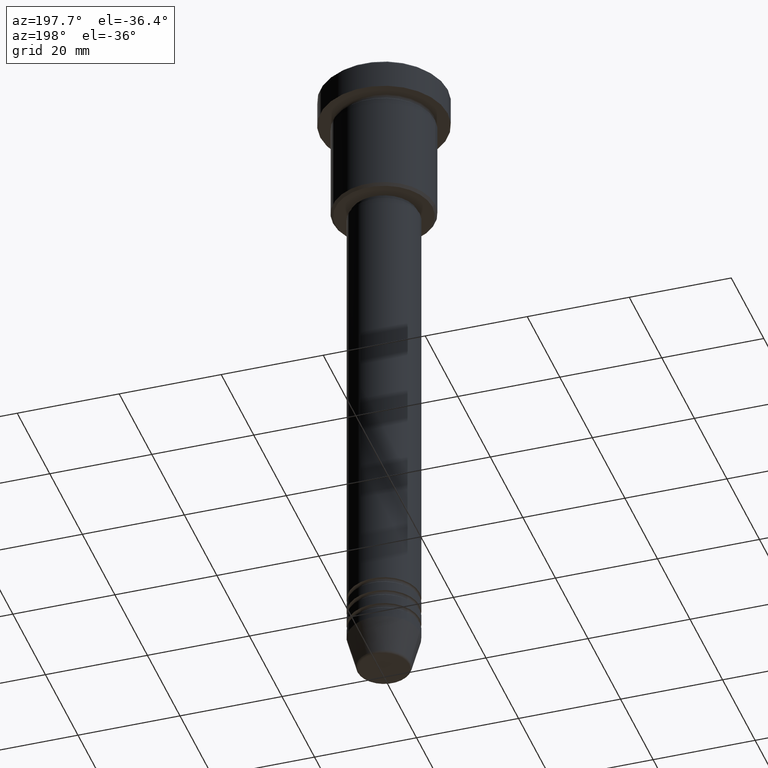
[diagram: clean part render]
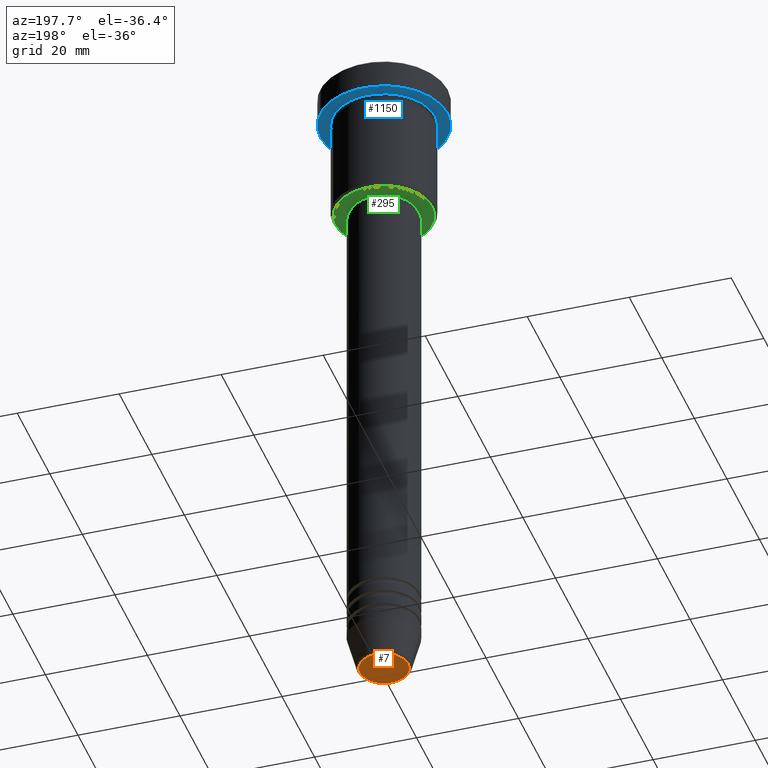
[diagram: same view with three faces highlighted in distinct colors, each labeled with its STEP entity id]
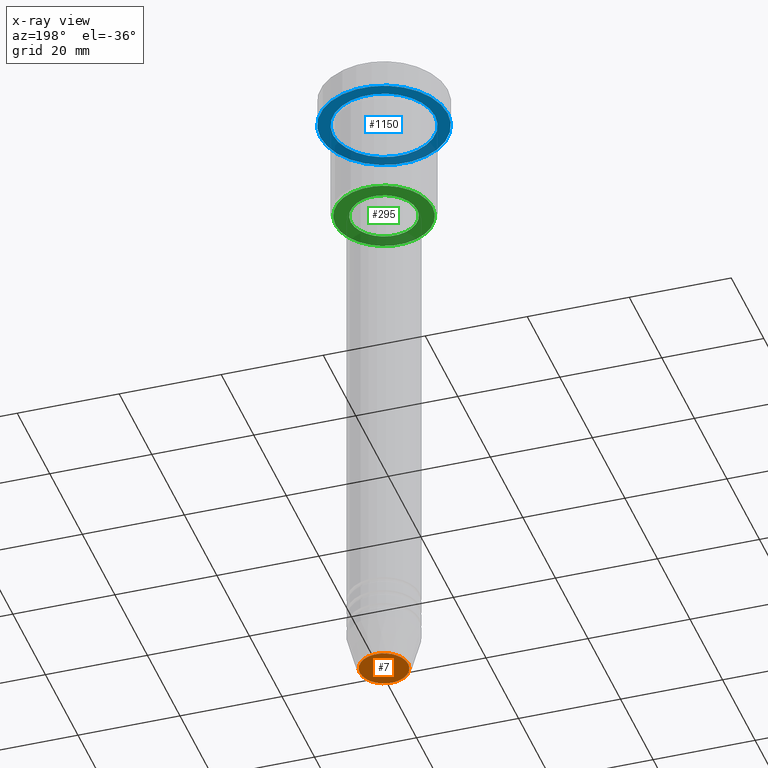
[diagram: x-ray of the same camera — body ghosted, the three highlighted faces saturated]
A machine part, auxiliary view with three faces highlighted in distinct colors.
The next image is the same camera in x-ray (body ghosted, the three faces saturated) — at least one of them is partly hidden behind the body in this view.
Their STEP definitions:

[orange] entity #7 — the highlighted planar face has unit normal (0, -0, 1).
#7 = ADVANCED_FACE ( 'NONE', ( #710 ), #1081, .F. ) ;
#21 = ORIENTED_EDGE ( 'NONE', *, *, #995, .T. ) ;
#35 = DIRECTION ( 'NONE',  ( 0.000000000000000000, 0.000000000000000000, -1.000000000000000000 ) ) ;
#97 = CARTESIAN_POINT ( 'NONE',  ( 0.000000000000000000, 0.000000000000000000, -132.0000000000000000 ) ) ;
#155 = EDGE_CURVE ( 'NONE', #240, #618, #1177, .T. ) ;
#189 = DIRECTION ( 'NONE',  ( 0.000000000000000000, -0.000000000000000000, 1.000000000000000000 ) ) ;
#240 = VERTEX_POINT ( 'NONE', #242 ) ;
#242 = CARTESIAN_POINT ( 'NONE',  ( 4.740692158992654726, 0.000000000000000000, -132.0000000000000000 ) ) ;
#282 = DIRECTION ( 'NONE',  ( 0.000000000000000000, 0.000000000000000000, -1.000000000000000000 ) ) ;
#464 = EDGE_LOOP ( 'NONE', ( #738, #21 ) ) ;
#470 = CIRCLE ( 'NONE', #557, 4.740692158992654726 ) ;
#546 = CARTESIAN_POINT ( 'NONE',  ( 0.000000000000000000, 0.000000000000000000, -132.0000000000000000 ) ) ;
#552 = AXIS2_PLACEMENT_3D ( 'NONE', #97, #282, #646 ) ;
#557 = AXIS2_PLACEMENT_3D ( 'NONE', #946, #35, #659 ) ;
#618 = VERTEX_POINT ( 'NONE', #1022 ) ;
#644 = DIRECTION ( 'NONE',  ( 1.000000000000000000, 0.000000000000000000, 0.000000000000000000 ) ) ;
#646 = DIRECTION ( 'NONE',  ( 1.000000000000000000, 0.000000000000000000, 0.000000000000000000 ) ) ;
#659 = DIRECTION ( 'NONE',  ( 1.000000000000000000, 0.000000000000000000, 0.000000000000000000 ) ) ;
#710 = FACE_OUTER_BOUND ( 'NONE', #464, .T. ) ;
#738 = ORIENTED_EDGE ( 'NONE', *, *, #155, .T. ) ;
#824 = AXIS2_PLACEMENT_3D ( 'NONE', #546, #189, #644 ) ;
#946 = CARTESIAN_POINT ( 'NONE',  ( 0.000000000000000000, 0.000000000000000000, -132.0000000000000000 ) ) ;
#995 = EDGE_CURVE ( 'NONE', #618, #240, #470, .T. ) ;
#1022 = CARTESIAN_POINT ( 'NONE',  ( -4.740692158992654726, 6.101402971097978774E-16, -132.0000000000000000 ) ) ;
#1081 = PLANE ( 'NONE',  #824 ) ;
#1177 = CIRCLE ( 'NONE', #552, 4.740692158992654726 ) ;

[blue] entity #1150 — the highlighted planar face has unit normal (0, 0, -1).
#4 = DIRECTION ( 'NONE',  ( -0.000000000000000000, -0.000000000000000000, 1.000000000000000000 ) ) ;
#71 = PLANE ( 'NONE',  #890 ) ;
#94 = CIRCLE ( 'NONE', #1123, 10.00000000000000000 ) ;
#107 = ORIENTED_EDGE ( 'NONE', *, *, #545, .F. ) ;
#120 = DIRECTION ( 'NONE',  ( -0.000000000000000000, -0.000000000000000000, 1.000000000000000000 ) ) ;
#174 = FACE_OUTER_BOUND ( 'NONE', #1173, .T. ) ;
#180 = CARTESIAN_POINT ( 'NONE',  ( -10.00000000000000000, 0.000000000000000000, -5.999999999999996447 ) ) ;
#227 = VERTEX_POINT ( 'NONE', #873 ) ;
#365 = DIRECTION ( 'NONE',  ( -1.000000000000000000, 0.000000000000000000, 0.000000000000000000 ) ) ;
#377 = CIRCLE ( 'NONE', #494, 12.50000000000000000 ) ;
#382 = DIRECTION ( 'NONE',  ( 1.000000000000000000, 0.000000000000000000, 0.000000000000000000 ) ) ;
#383 = VERTEX_POINT ( 'NONE', #180 ) ;
#387 = CARTESIAN_POINT ( 'NONE',  ( 0.000000000000000000, 0.000000000000000000, -5.999999999999996447 ) ) ;
#410 = CARTESIAN_POINT ( 'NONE',  ( 10.00000000000000000, 1.224646799147353256E-15, -5.999999999999996447 ) ) ;
#426 = FACE_BOUND ( 'NONE', #804, .T. ) ;
#477 = DIRECTION ( 'NONE',  ( -0.000000000000000000, -0.000000000000000000, 1.000000000000000000 ) ) ;
#487 = VERTEX_POINT ( 'NONE', #555 ) ;
#494 = AXIS2_PLACEMENT_3D ( 'NONE', #750, #4, #382 ) ;
#545 = EDGE_CURVE ( 'NONE', #227, #487, #683, .T. ) ;
#555 = CARTESIAN_POINT ( 'NONE',  ( 12.50000000000000000, 0.000000000000000000, -5.999999999999996447 ) ) ;
#611 = AXIS2_PLACEMENT_3D ( 'NONE', #1183, #800, #365 ) ;
#653 = ORIENTED_EDGE ( 'NONE', *, *, #1033, .F. ) ;
#654 = CARTESIAN_POINT ( 'NONE',  ( 0.000000000000000000, 0.000000000000000000, -5.999999999999996447 ) ) ;
#683 = CIRCLE ( 'NONE', #755, 12.50000000000000000 ) ;
#750 = CARTESIAN_POINT ( 'NONE',  ( 0.000000000000000000, 0.000000000000000000, -5.999999999999996447 ) ) ;
#755 = AXIS2_PLACEMENT_3D ( 'NONE', #654, #120, #934 ) ;
#800 = DIRECTION ( 'NONE',  ( -0.000000000000000000, -0.000000000000000000, 1.000000000000000000 ) ) ;
#804 = EDGE_LOOP ( 'NONE', ( #915, #1147 ) ) ;
#829 = CIRCLE ( 'NONE', #611, 10.00000000000000000 ) ;
#873 = CARTESIAN_POINT ( 'NONE',  ( -12.50000000000000000, 1.530808498934191521E-15, -5.999999999999996447 ) ) ;
#890 = AXIS2_PLACEMENT_3D ( 'NONE', #1078, #982, #1065 ) ;
#915 = ORIENTED_EDGE ( 'NONE', *, *, #940, .T. ) ;
#930 = DIRECTION ( 'NONE',  ( -1.000000000000000000, 0.000000000000000000, 0.000000000000000000 ) ) ;
#934 = DIRECTION ( 'NONE',  ( 1.000000000000000000, 0.000000000000000000, 0.000000000000000000 ) ) ;
#940 = EDGE_CURVE ( 'NONE', #383, #1174, #829, .T. ) ;
#982 = DIRECTION ( 'NONE',  ( 0.000000000000000000, 0.000000000000000000, -1.000000000000000000 ) ) ;
#1033 = EDGE_CURVE ( 'NONE', #487, #227, #377, .T. ) ;
#1065 = DIRECTION ( 'NONE',  ( -1.000000000000000000, 0.000000000000000000, -0.000000000000000000 ) ) ;
#1071 = EDGE_CURVE ( 'NONE', #1174, #383, #94, .T. ) ;
#1078 = CARTESIAN_POINT ( 'NONE',  ( 0.000000000000000000, 12.50000000000000000, -5.999999999999996447 ) ) ;
#1123 = AXIS2_PLACEMENT_3D ( 'NONE', #387, #477, #930 ) ;
#1147 = ORIENTED_EDGE ( 'NONE', *, *, #1071, .T. ) ;
#1150 = ADVANCED_FACE ( 'NONE', ( #426, #174 ), #71, .T. ) ;
#1173 = EDGE_LOOP ( 'NONE', ( #653, #107 ) ) ;
#1174 = VERTEX_POINT ( 'NONE', #410 ) ;
#1183 = CARTESIAN_POINT ( 'NONE',  ( 0.000000000000000000, 0.000000000000000000, -5.999999999999996447 ) ) ;

[green] entity #295 — the highlighted planar face has unit normal (0, 0, -1).
#13 = ORIENTED_EDGE ( 'NONE', *, *, #577, .T. ) ;
#18 = DIRECTION ( 'NONE',  ( 1.000000000000000000, 0.000000000000000000, 0.000000000000000000 ) ) ;
#26 = CARTESIAN_POINT ( 'NONE',  ( 6.500000000000000000, 0.000000000000000000, -27.00000000000000000 ) ) ;
#37 = DIRECTION ( 'NONE',  ( 0.000000000000000000, 0.000000000000000000, -1.000000000000000000 ) ) ;
#76 = CARTESIAN_POINT ( 'NONE',  ( 9.499999999999994671, 0.000000000000000000, -27.00000000000000000 ) ) ;
#139 = DIRECTION ( 'NONE',  ( -1.000000000000000000, 0.000000000000000000, 0.000000000000000000 ) ) ;
#160 = CARTESIAN_POINT ( 'NONE',  ( 0.000000000000000000, 0.000000000000000000, -27.00000000000000000 ) ) ;
#185 = CARTESIAN_POINT ( 'NONE',  ( 0.000000000000000000, 0.000000000000000000, -27.00000000000000000 ) ) ;
#237 = DIRECTION ( 'NONE',  ( -1.000000000000000000, 0.000000000000000000, -0.000000000000000000 ) ) ;
#257 = FACE_BOUND ( 'NONE', #560, .T. ) ;
#270 = ORIENTED_EDGE ( 'NONE', *, *, #680, .T. ) ;
#277 = DIRECTION ( 'NONE',  ( -0.000000000000000000, -0.000000000000000000, 1.000000000000000000 ) ) ;
#295 = ADVANCED_FACE ( 'NONE', ( #1149, #257 ), #425, .T. ) ;
#329 = DIRECTION ( 'NONE',  ( -1.000000000000000000, 0.000000000000000000, 0.000000000000000000 ) ) ;
#366 = CARTESIAN_POINT ( 'NONE',  ( -6.500000000000000000, 7.960204194457795477E-16, -27.00000000000000000 ) ) ;
#385 = DIRECTION ( 'NONE',  ( -0.000000000000000000, -0.000000000000000000, 1.000000000000000000 ) ) ;
#392 = EDGE_CURVE ( 'NONE', #1092, #480, #1027, .T. ) ;
#425 = PLANE ( 'NONE',  #429 ) ;
#429 = AXIS2_PLACEMENT_3D ( 'NONE', #773, #697, #237 ) ;
#448 = CIRCLE ( 'NONE', #1086, 9.499999999999994671 ) ;
#455 = VERTEX_POINT ( 'NONE', #729 ) ;
#480 = VERTEX_POINT ( 'NONE', #366 ) ;
#560 = EDGE_LOOP ( 'NONE', ( #854, #13 ) ) ;
#577 = EDGE_CURVE ( 'NONE', #480, #1092, #1045, .T. ) ;
#680 = EDGE_CURVE ( 'NONE', #455, #926, #701, .T. ) ;
#695 = EDGE_LOOP ( 'NONE', ( #832, #270 ) ) ;
#697 = DIRECTION ( 'NONE',  ( 0.000000000000000000, 0.000000000000000000, -1.000000000000000000 ) ) ;
#701 = CIRCLE ( 'NONE', #1006, 9.499999999999994671 ) ;
#729 = CARTESIAN_POINT ( 'NONE',  ( -9.499999999999994671, 1.194030629168669075E-15, -27.00000000000000000 ) ) ;
#737 = DIRECTION ( 'NONE',  ( 1.000000000000000000, 0.000000000000000000, 0.000000000000000000 ) ) ;
#773 = CARTESIAN_POINT ( 'NONE',  ( 0.000000000000000000, 10.00000000000000000, -27.00000000000000000 ) ) ;
#784 = EDGE_CURVE ( 'NONE', #926, #455, #448, .T. ) ;
#821 = CARTESIAN_POINT ( 'NONE',  ( 0.000000000000000000, 0.000000000000000000, -27.00000000000000000 ) ) ;
#832 = ORIENTED_EDGE ( 'NONE', *, *, #784, .T. ) ;
#854 = ORIENTED_EDGE ( 'NONE', *, *, #392, .T. ) ;
#866 = DIRECTION ( 'NONE',  ( 0.000000000000000000, 0.000000000000000000, -1.000000000000000000 ) ) ;
#869 = AXIS2_PLACEMENT_3D ( 'NONE', #821, #385, #18 ) ;
#926 = VERTEX_POINT ( 'NONE', #76 ) ;
#1006 = AXIS2_PLACEMENT_3D ( 'NONE', #160, #866, #329 ) ;
#1027 = CIRCLE ( 'NONE', #1103, 6.500000000000000000 ) ;
#1045 = CIRCLE ( 'NONE', #869, 6.500000000000000000 ) ;
#1086 = AXIS2_PLACEMENT_3D ( 'NONE', #1152, #37, #139 ) ;
#1092 = VERTEX_POINT ( 'NONE', #26 ) ;
#1103 = AXIS2_PLACEMENT_3D ( 'NONE', #185, #277, #737 ) ;
#1149 = FACE_OUTER_BOUND ( 'NONE', #695, .T. ) ;
#1152 = CARTESIAN_POINT ( 'NONE',  ( 0.000000000000000000, 0.000000000000000000, -27.00000000000000000 ) ) ;